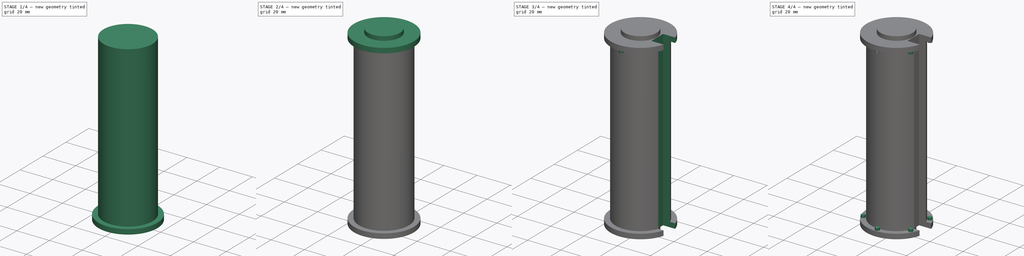
[diagram: build sequence overview — one tinted view per stage of 4, left to right]
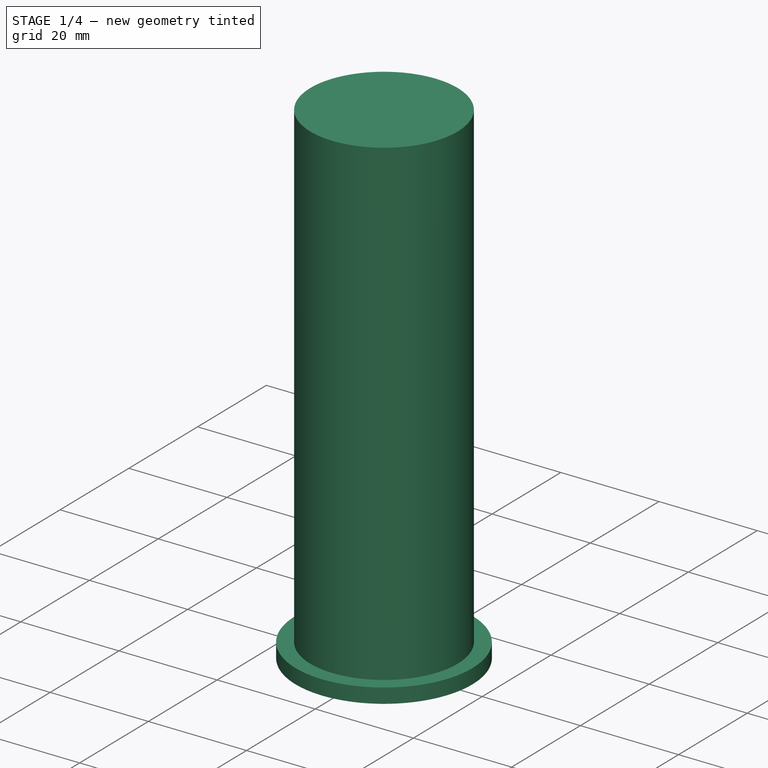
[diagram: stage 1 of 4 — iso view after this stage's code; geometry added in this stage tinted green]
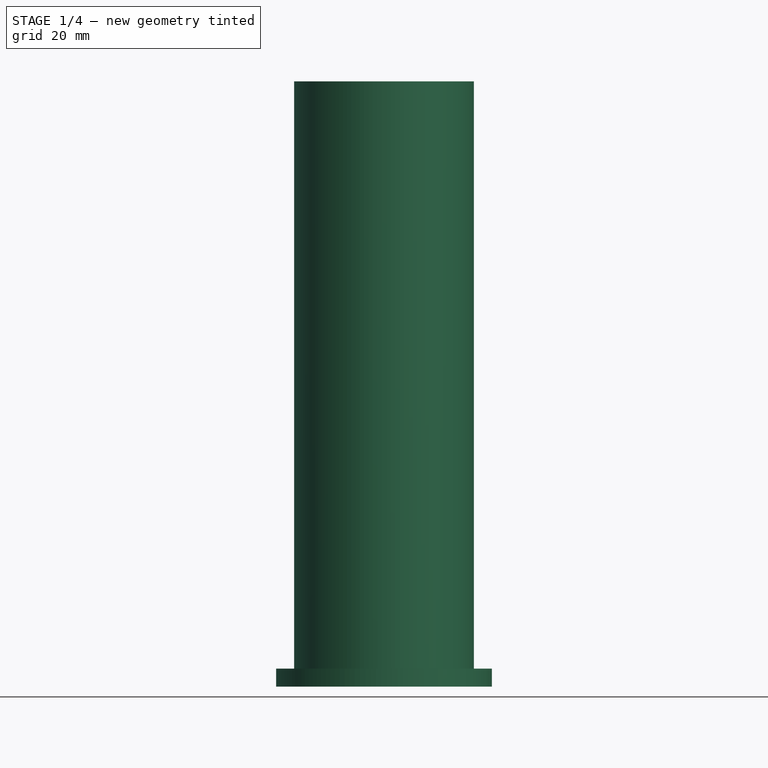
[diagram: stage 1 of 4 — front view after this stage's code; geometry added in this stage tinted green]
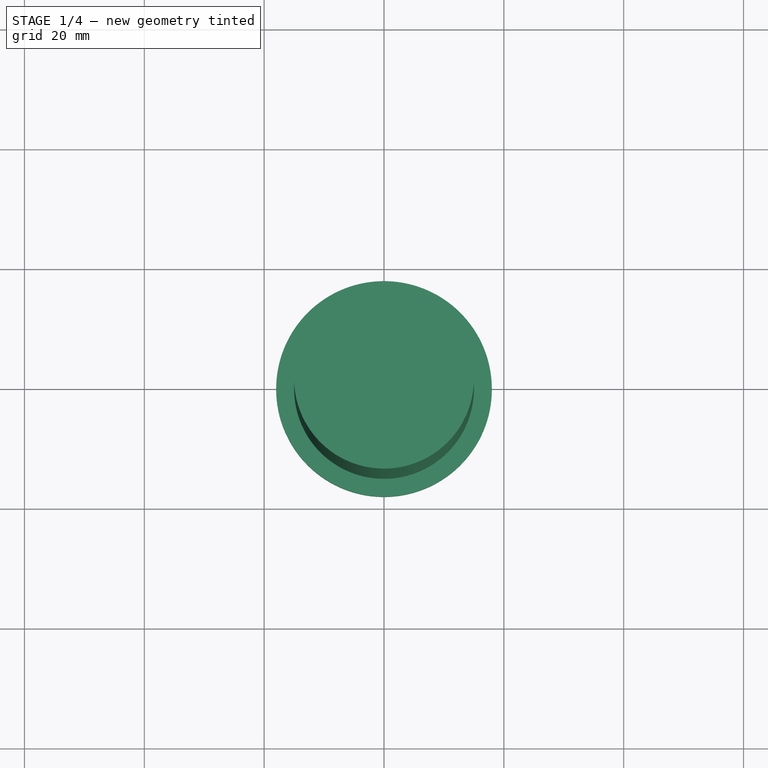
[diagram: stage 1 of 4 — top view after this stage's code; geometry added in this stage tinted green]
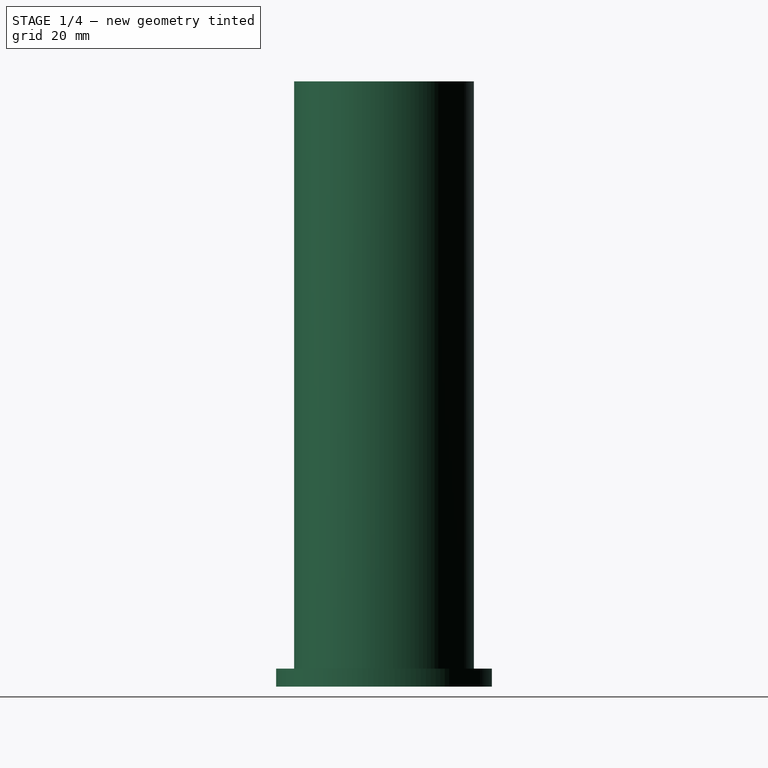
[diagram: stage 1 of 4 — right view after this stage's code; geometry added in this stage tinted green]
FCSTD DOCUMENT  (FreeCAD 0.20R29603 (Git))
Label: frameTubeType3
License: All rights reserved
LicenseURL: http://en.wikipedia.org/wiki/All_rights_reserved
objects: Sketcher::SketchObject×8, PartDesign::Pad×7, PartDesign::PolarPattern×2, PartDesign::Pocket×1, PartDesign::Body×1, App::MeasureDistance×1
note: 27 computed .brp shape members not serialized (recipe doc carries the construction recipe); baked Part::Feature solids carry a one-line shape summary decoded from their .brp

FEATURE [Sketcher::SketchObject] Sketch  label="Tube"
  FullyConstrained = true
  MapMode = 5
  Support = -> [XY_Plane]
  sketch-geometry (1):
    g0: Circle CenterX=0 CenterY=0 CenterZ=0 NormalX=0 NormalY=0 NormalZ=1 AngleXU=0 Radius=15
  constraints (2):
    c: Coincident(g0,g-1)
    c: Diameter(g0) = 30
FEATURE [PartDesign::Pad] Pad  label="PadTube"
  Direction = (0,0,1)
  Length = 98
  Length2 = 10
  Profile = -> Sketch
  ReferenceAxis = -> Sketch [N_Axis]
  Type = 0
FEATURE [Sketcher::SketchObject] Sketch002  label="Flang001"
  FullyConstrained = true
  MapMode = 5
  Placement = pos=(0,0,0) rot=(1,0,0;3.14159rad)
  sketch-geometry (1):
    g0: Circle CenterX=0 CenterY=0 CenterZ=0 NormalX=0 NormalY=0 NormalZ=1 AngleXU=0 Radius=18
  constraints (2):
    c: Coincident(g0,g-1)
    c: Diameter(g0) = 36
FEATURE [PartDesign::Pad] Pad002  label="PadFlang001"
  BaseFeature = -> Pad
  Direction = (0,0,-1)
  Length = 3
  Length2 = 10
  Profile = -> Sketch002
  ReferenceAxis = -> Sketch002 [N_Axis]
  Type = 0
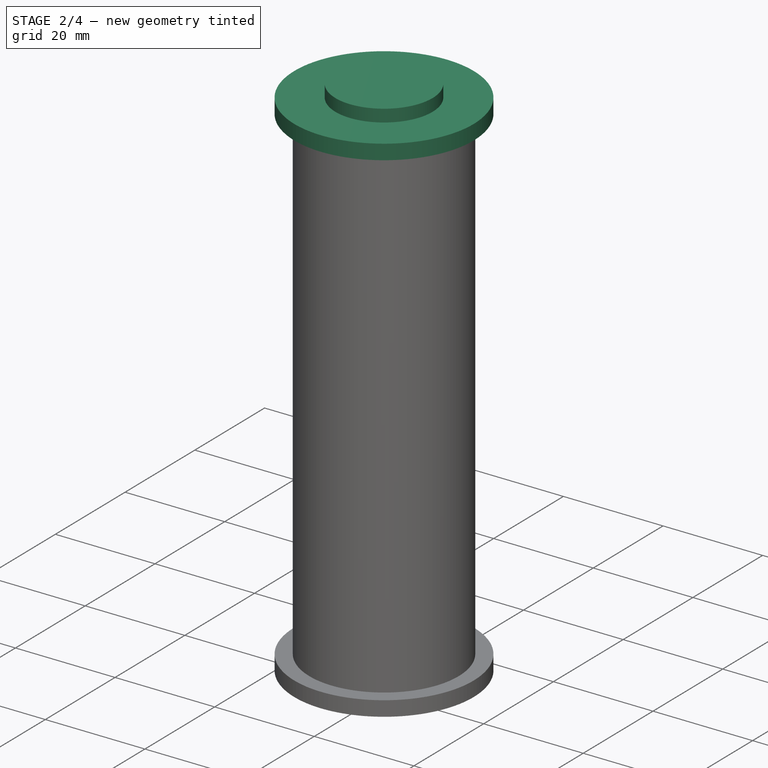
[diagram: stage 2 of 4 — iso view after this stage's code; geometry added in this stage tinted green]
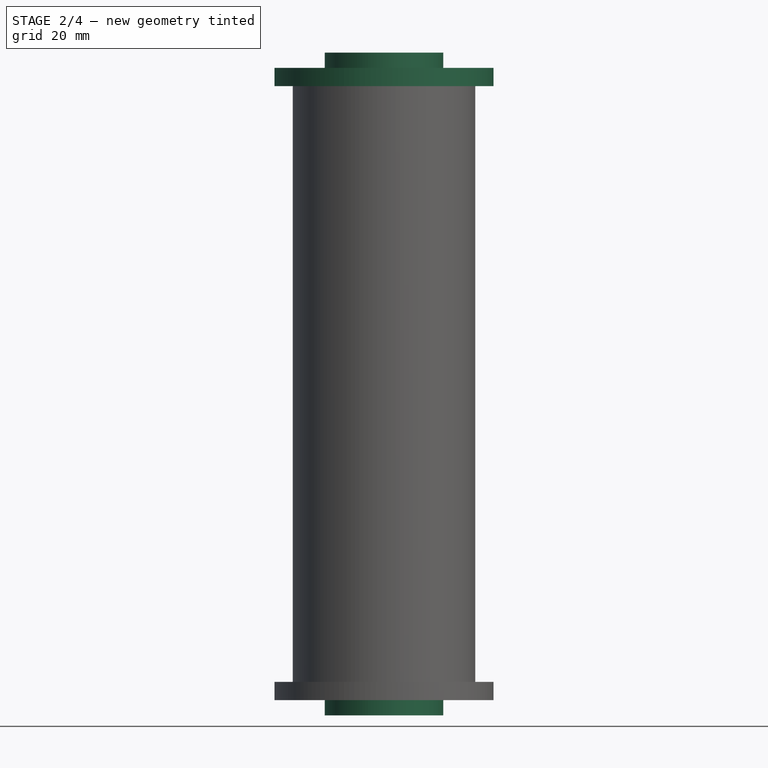
[diagram: stage 2 of 4 — front view after this stage's code; geometry added in this stage tinted green]
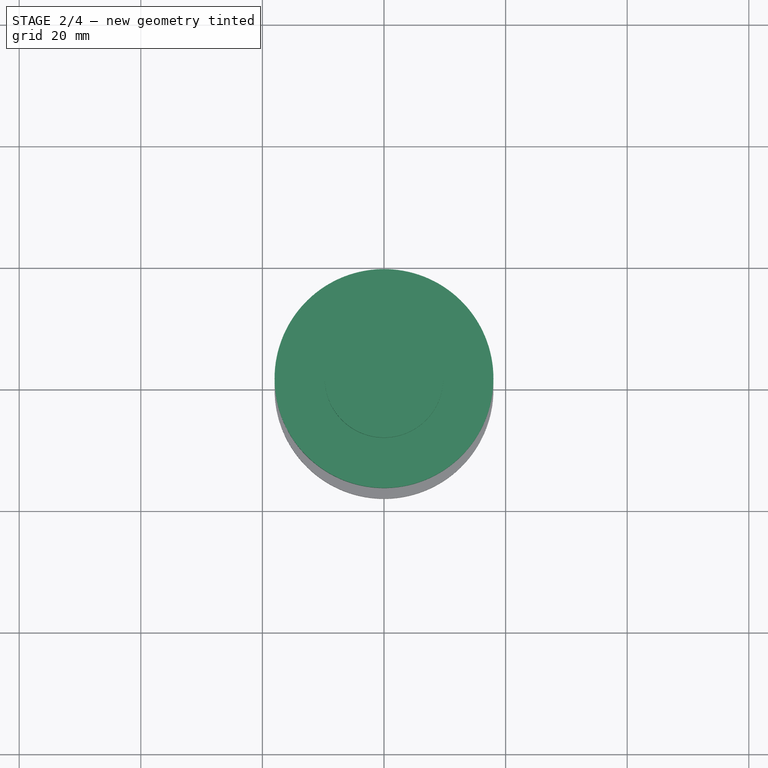
[diagram: stage 2 of 4 — top view after this stage's code; geometry added in this stage tinted green]
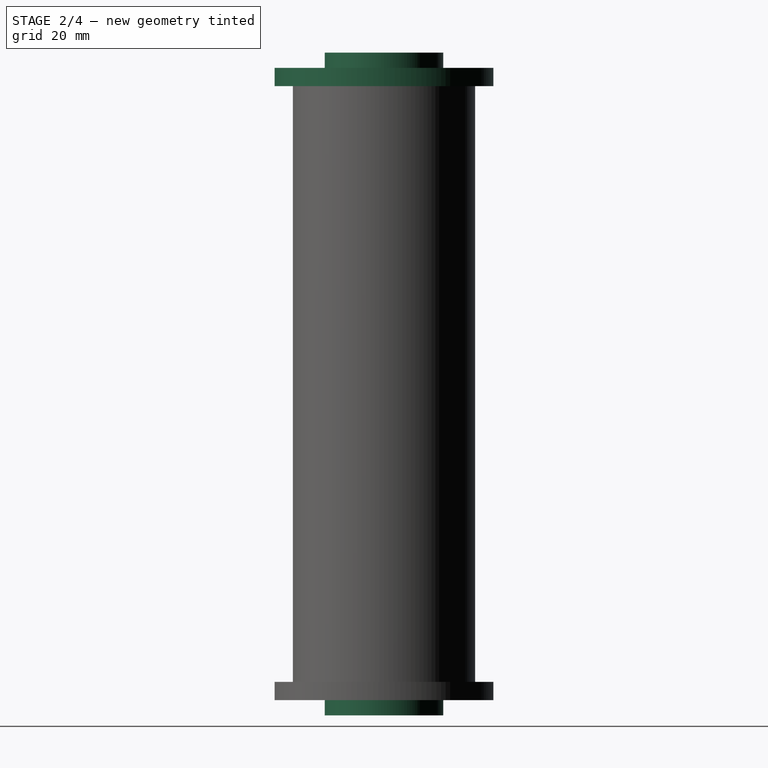
[diagram: stage 2 of 4 — right view after this stage's code; geometry added in this stage tinted green]
FEATURE [Sketcher::SketchObject] Sketch004  label="Peg001"
  FullyConstrained = true
  MapMode = 5
  Placement = pos=(0,0,-3) rot=(1,0,0;3.14159rad)
  Support = -> [Pad002]
  sketch-geometry (1):
    g0: Circle CenterX=0 CenterY=0 CenterZ=0 NormalX=0 NormalY=0 NormalZ=1 AngleXU=0 Radius=9.75
  constraints (2):
    c: Coincident(g0,g-1)
    c: Diameter(g0) = 19.5
FEATURE [Sketcher::SketchObject] Sketch005  label="Flang002"
  FullyConstrained = true
  MapMode = 5
  Placement = pos=(0,0,98) rot=(0,0,1;0rad)
  sketch-geometry (1):
    g0: Circle CenterX=0 CenterY=0 CenterZ=0 NormalX=0 NormalY=0 NormalZ=1 AngleXU=0 Radius=18
  constraints (2):
    c: Coincident(g0,g-1)
    c: Diameter(g0) = 36
FEATURE [PartDesign::Pad] Pad004  label="PadFlang002"
  BaseFeature = -> Pad002
  Direction = (0,0,1)
  Length = 3
  Length2 = 10
  Profile = -> Sketch005
  ReferenceAxis = -> Sketch005 [N_Axis]
  Type = 0
FEATURE [Sketcher::SketchObject] Sketch001  label="Peg"
  FullyConstrained = true
  MapMode = 5
  Placement = pos=(0,0,101) rot=(0,0,1;0rad)
  Support = -> [Pad004]
  sketch-geometry (1):
    g0: Circle CenterX=0 CenterY=0 CenterZ=0 NormalX=0 NormalY=0 NormalZ=1 AngleXU=0 Radius=9.75
  constraints (2):
    c: Coincident(g0,g-1)
    c: Diameter(g0) = 19.5
FEATURE [PartDesign::Pad] Pad005  label="Peg002"
  BaseFeature = -> Pad004
  Direction = (0,0,-1)
  Length = 2.5
  Length2 = 10
  Profile = -> Sketch004
  ReferenceAxis = -> Sketch004 [N_Axis]
  Type = 0
FEATURE [PartDesign::Pad] Pad006
  BaseFeature = -> Pad005
  Direction = (0,0,1)
  Length = 2.5
  Length2 = 10
  Profile = -> Sketch001
  ReferenceAxis = -> Sketch001 [N_Axis]
  Type = 0
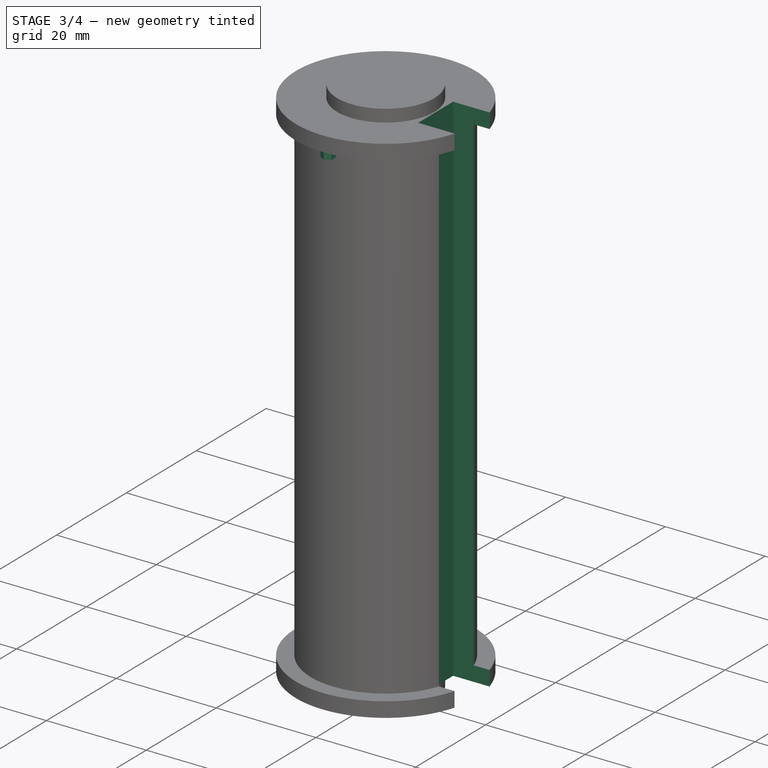
[diagram: stage 3 of 4 — iso view after this stage's code; geometry added in this stage tinted green]
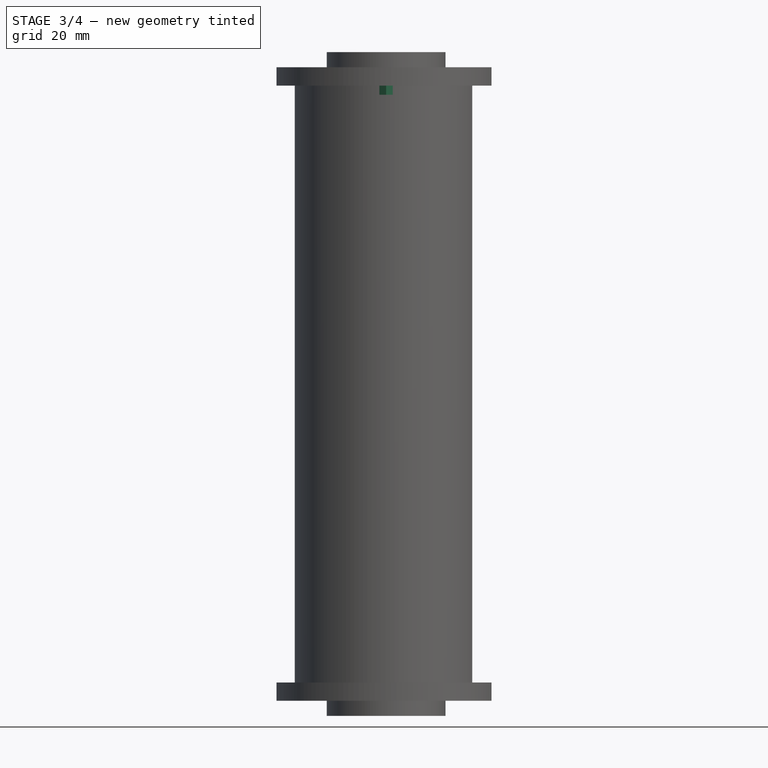
[diagram: stage 3 of 4 — front view after this stage's code; geometry added in this stage tinted green]
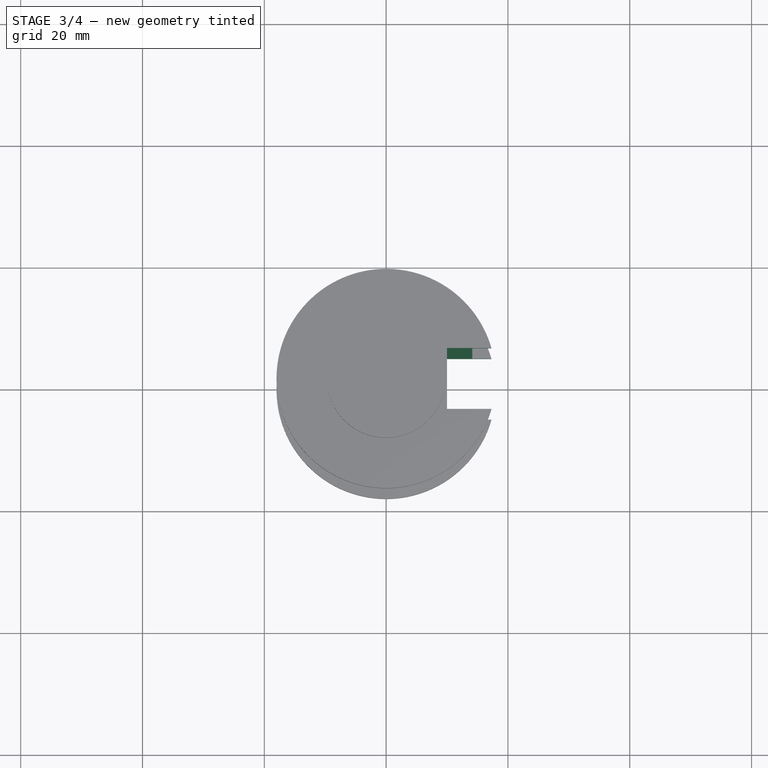
[diagram: stage 3 of 4 — top view after this stage's code; geometry added in this stage tinted green]
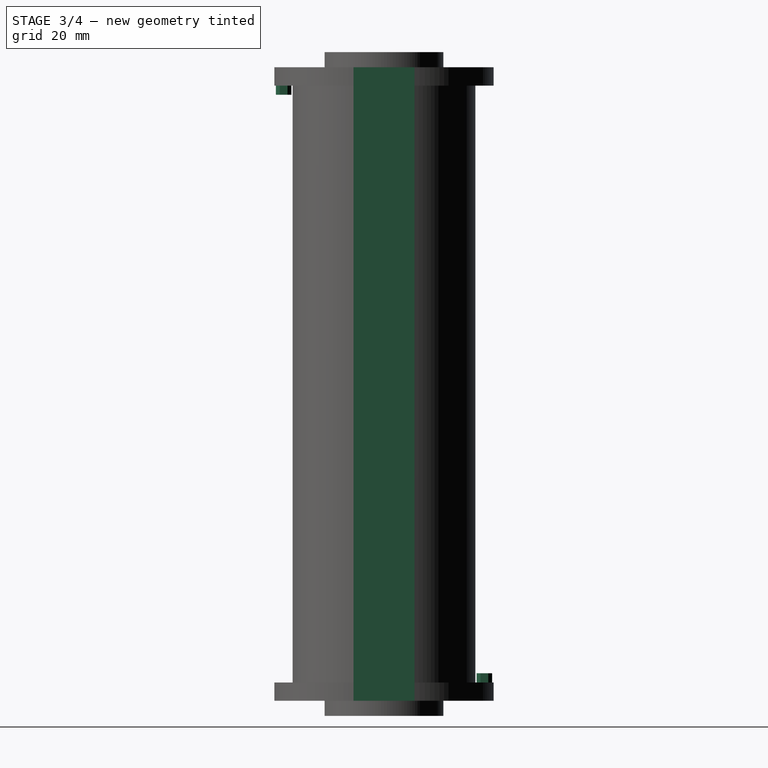
[diagram: stage 3 of 4 — right view after this stage's code; geometry added in this stage tinted green]
FEATURE [Sketcher::SketchObject] Sketch003
  FullyConstrained = true
  MapMode = 5
  Placement = pos=(0,0,-5.5) rot=(1,0,0;3.14159rad)
  Support = -> [Pad006]
  sketch-geometry (4):
    g0: LineSegment StartX=10 StartY=5 StartZ=0 EndX=18 EndY=5 EndZ=0
    g1: LineSegment StartX=18 StartY=5 StartZ=0 EndX=18 EndY=-5 EndZ=0
    g2: LineSegment StartX=18 StartY=-5 StartZ=0 EndX=10 EndY=-5 EndZ=0
    g3: LineSegment StartX=10 StartY=-5 StartZ=0 EndX=10 EndY=5 EndZ=0
  constraints (12):
    c: Coincident(g0,g1)
    c: Coincident(g1,g2)
    c: Coincident(g2,g3)
    c: Coincident(g3,g0)
    c: Horizontal(g0)
    c: Horizontal(g2)
    c: Vertical(g1)
    c: Vertical(g3)
    c: DistanceY(g1,g1) = 10
    c: DistanceX(g0,g0) = 8
    c: DistanceY(g-1,g0) = 5
    c: DistanceX(g-1,g2) = 10
FEATURE [PartDesign::Pocket] Pocket  label="Groove"
  BaseFeature = -> Pad006
  Direction = (0,0,1)
  Length = 108
  Length2 = 5
  Profile = -> Sketch003
  ReferenceAxis = -> Sketch003 [N_Axis]
  Type = 0
FEATURE [Sketcher::SketchObject] Sketch010  label="bolt"
  FullyConstrained = false
  MapMode = 5
  Support = -> [Pocket]
  sketch-geometry (6):
    g0: LineSegment StartX=-1.11579 StartY=17.1217 StartZ=0 EndX=-0.012041 EndY=17.7589 EndZ=0
    g1: LineSegment StartX=-0.012041 StartY=17.7589 StartZ=0 EndX=1.09171 EndY=17.1217 EndZ=0
    g2: LineSegment StartX=1.09171 StartY=17.1217 StartZ=0 EndX=1.09171 EndY=15.8472 EndZ=0
    g3: LineSegment StartX=1.09171 StartY=15.8472 StartZ=0 EndX=-0.012041 EndY=15.2099 EndZ=0
    g4: LineSegment StartX=-0.012041 StartY=15.2099 StartZ=0 EndX=-1.11579 EndY=15.8472 EndZ=0
    g5: LineSegment StartX=-1.11579 StartY=15.8472 StartZ=0 EndX=-1.11579 EndY=17.1217 EndZ=0
  constraints (14):
    c: Coincident(g5,g0)
    c: Coincident(g4,g5)
    c: Coincident(g3,g4)
    c: Coincident(g2,g3)
    c: Coincident(g2,g1)
    c: Coincident(g1,g0)
    c: Equal(g4,g5)
    c: Equal(g0,g5)
    c: Equal(g1,g0)
    c: Equal(g1,g2)
    c: Equal(g2,g3)
    c: Angle(g0,g1) = 2.0944
    c: Angle(g5,g0) = 2.0944
    c: Angle(g4,g5) = 2.0944
FEATURE [PartDesign::Pad] Pad007  label="PadBolt"
  BaseFeature = -> Pocket
  Direction = (0,0,1)
  Length = 1.5
  Length2 = 10
  Profile = -> Sketch010
  ReferenceAxis = -> Sketch010 [N_Axis]
  Type = 0
FEATURE [Sketcher::SketchObject] Sketch014  label="bolt001"
  FullyConstrained = false
  MapMode = 5
  Placement = pos=(0,0,98) rot=(1,0,0;3.14159rad)
  Support = -> [Pad007]
  sketch-geometry (6):
    g0: LineSegment StartX=-1.11579 StartY=17.1217 StartZ=0 EndX=-0.012041 EndY=17.7589 EndZ=0
    g1: LineSegment StartX=-0.012041 StartY=17.7589 StartZ=0 EndX=1.09171 EndY=17.1217 EndZ=0
    g2: LineSegment StartX=1.09171 StartY=17.1217 StartZ=0 EndX=1.09171 EndY=15.8472 EndZ=0
    g3: LineSegment StartX=1.09171 StartY=15.8472 StartZ=0 EndX=-0.012041 EndY=15.2099 EndZ=0
    g4: LineSegment StartX=-0.012041 StartY=15.2099 StartZ=0 EndX=-1.11579 EndY=15.8472 EndZ=0
    g5: LineSegment StartX=-1.11579 StartY=15.8472 StartZ=0 EndX=-1.11579 EndY=17.1217 EndZ=0
  constraints (14):
    c: Coincident(g5,g0)
    c: Coincident(g4,g5)
    c: Coincident(g3,g4)
    c: Coincident(g2,g3)
    c: Coincident(g2,g1)
    c: Coincident(g1,g0)
    c: Equal(g4,g5)
    c: Equal(g0,g5)
    c: Equal(g1,g0)
    c: Equal(g1,g2)
    c: Equal(g2,g3)
    c: Angle(g0,g1) = 2.0944
    c: Angle(g5,g0) = 2.0944
    c: Angle(g4,g5) = 2.0944
FEATURE [PartDesign::Pad] Pad008  label="PadBolt001"
  BaseFeature = -> Pad007
  Direction = (0,0,-1)
  Length = 1.5
  Length2 = 10
  Profile = -> Sketch014
  ReferenceAxis = -> Sketch014 [N_Axis]
  Type = 0
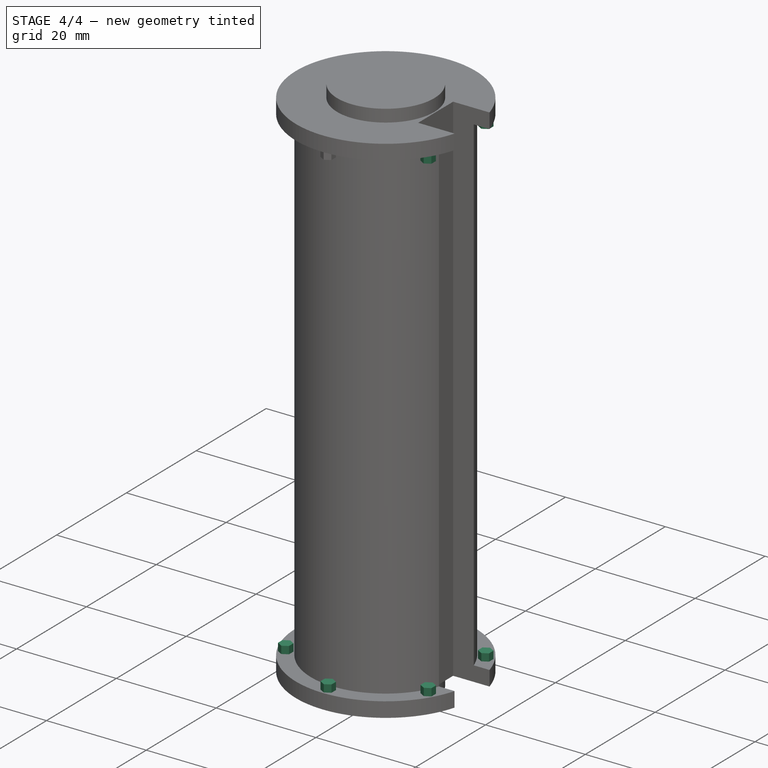
[diagram: stage 4 of 4 — iso view after this stage's code; geometry added in this stage tinted green]
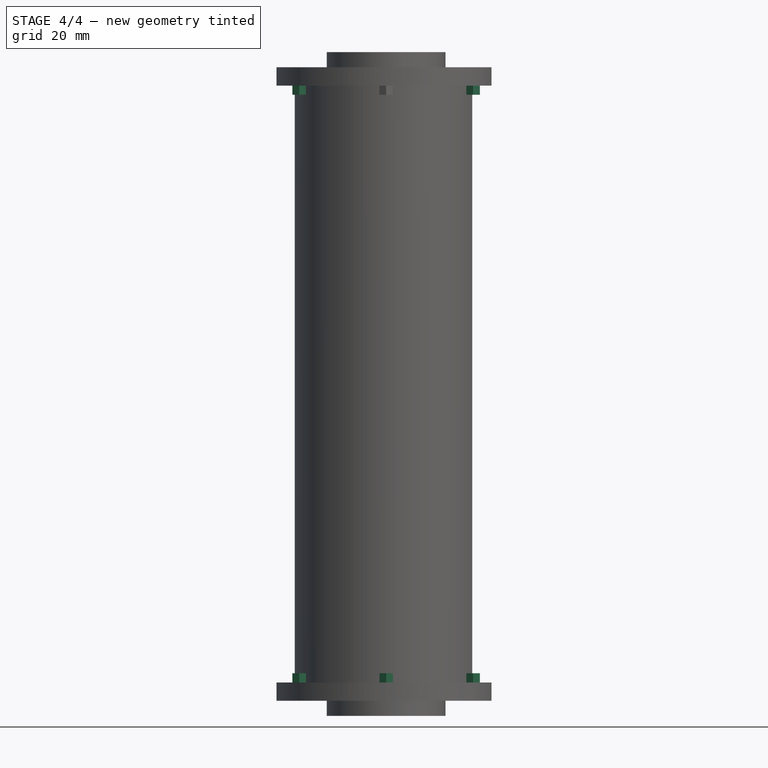
[diagram: stage 4 of 4 — front view after this stage's code; geometry added in this stage tinted green]
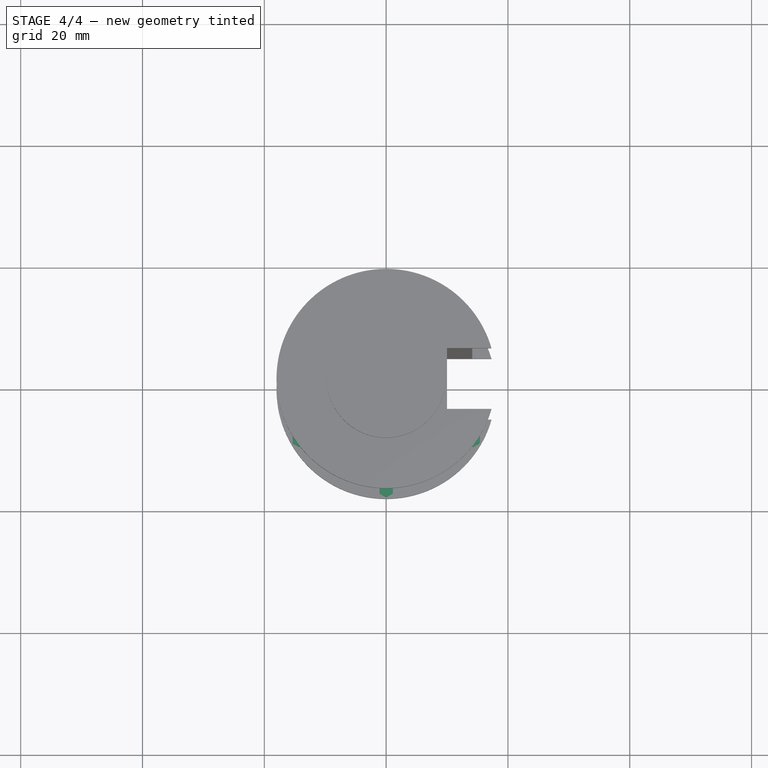
[diagram: stage 4 of 4 — top view after this stage's code; geometry added in this stage tinted green]
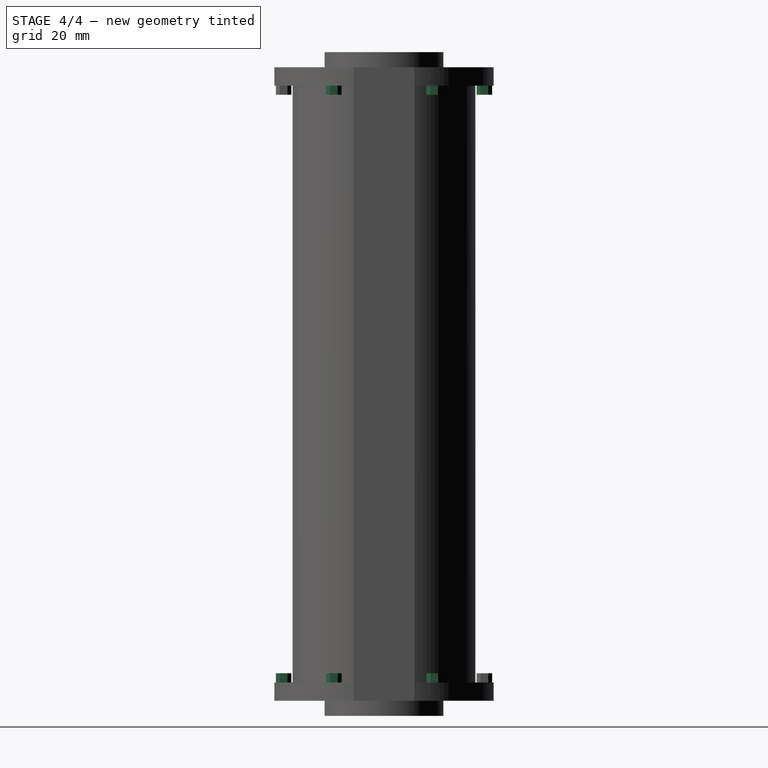
[diagram: stage 4 of 4 — right view after this stage's code; geometry added in this stage tinted green]
FEATURE [PartDesign::PolarPattern] PolarPattern
  Angle = 360
  Axis = -> Sketch014 [N_Axis]
  BaseFeature = -> Pad008
  Occurrences = 6
  Originals = -> [Pad008]
FEATURE [PartDesign::PolarPattern] PolarPattern001
  Angle = 360
  Axis = -> Sketch010 [N_Axis]
  BaseFeature = -> PolarPattern
  Occurrences = 6
  Originals = -> [Pad007]
FEATURE [PartDesign::Body] Body
  Group = -> [Sketch,Pad,Sketch001,Sketch002,Pad002,Sketch003,Sketch004,Sketch005,Pad004,Pad005,Pad006,Pocket,Sketch010,Sketch014,Pad007,Pad008,PolarPattern,PolarPattern001]
  Origin = -> Origin
  Tip = -> PolarPattern001
FEATURE [App::MeasureDistance] Distance  label="Distance: 103,92 mm"
  Distance = 103.92
  P1 = (10,-1.04863,-3)
  P2 = (10,-1.42048,100.919)
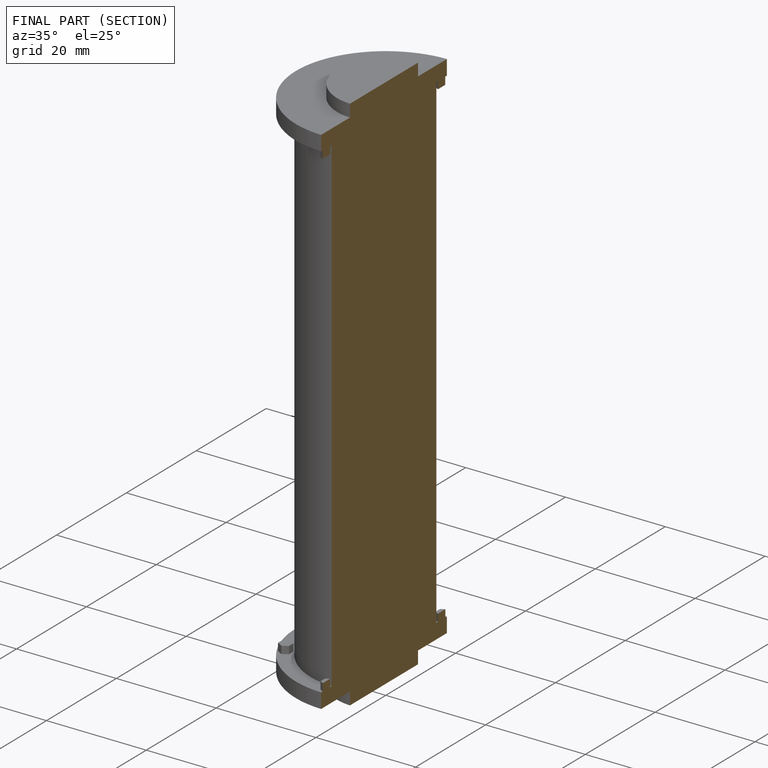
[diagram: finished part — half-section view (interior)]
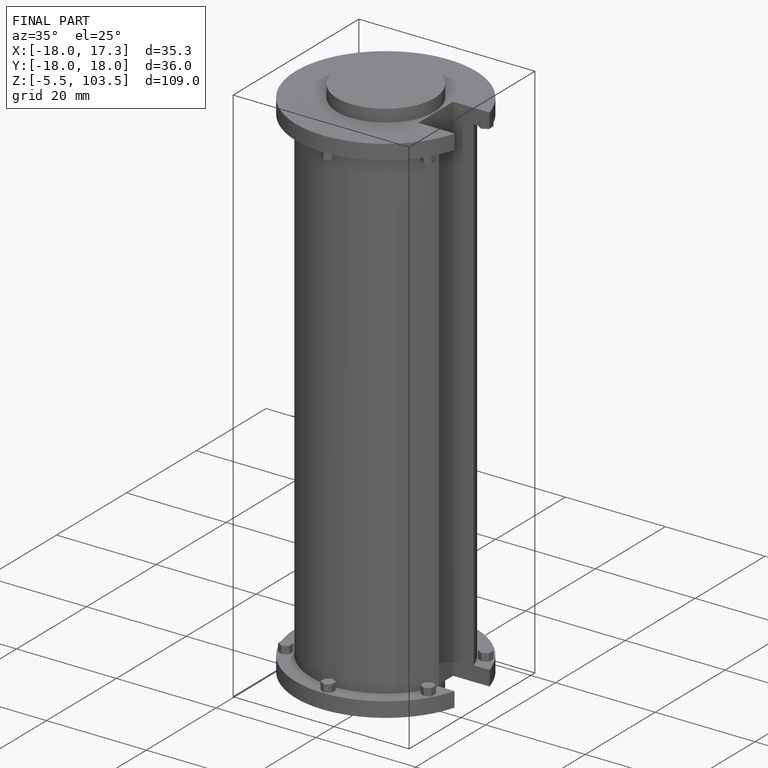
[diagram: finished part — iso view with bounding-box wireframe]
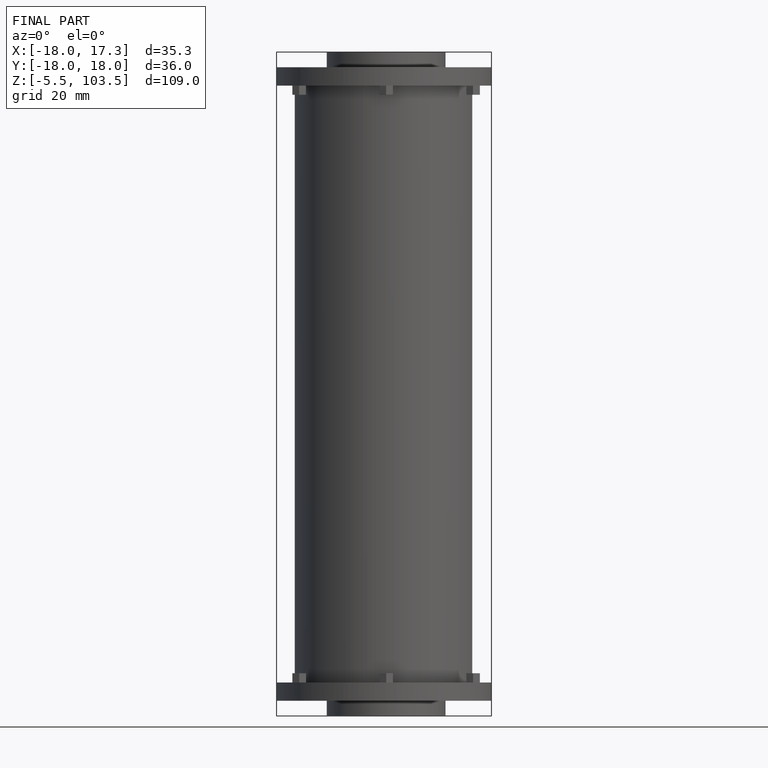
[diagram: finished part — front view with bounding-box wireframe]
